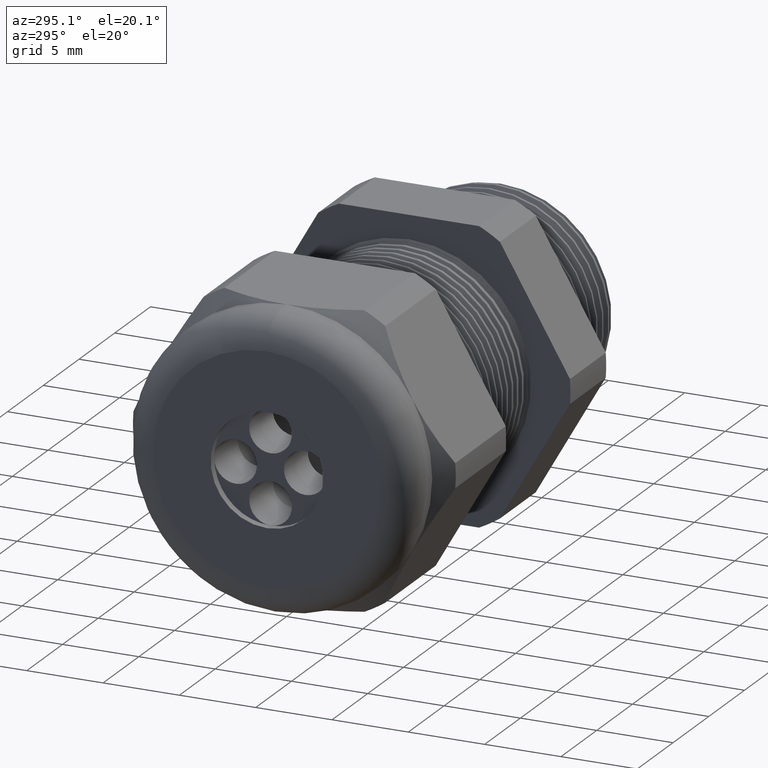
[diagram: clean part render]
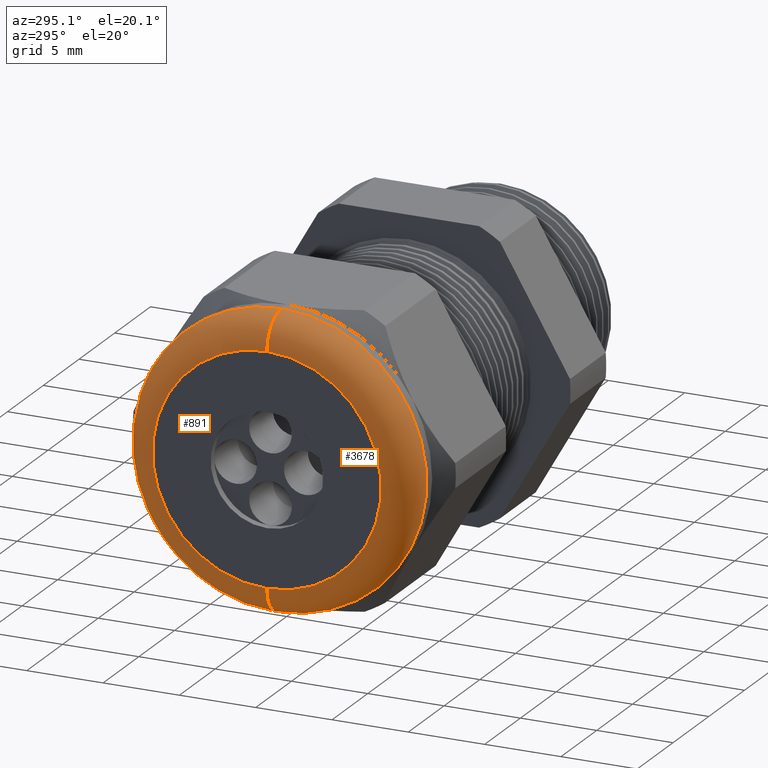
[diagram: same view with one multi-face feature highlighted, each face labeled with its STEP entity id]
A machine part, auxiliary view. The highlighted faces form ONE feature: a constant-radius fillet chain: 2 tangent blend faces with common blend radius 2.032 mm. The faces share edges in the B-rep.
Their STEP definitions:
[1] entity #3678 (Torus):
#110 = EDGE_CURVE ( 'NONE', #895, #894, #4941, .T. ) ;
#112 = EDGE_CURVE ( 'NONE', #815, #818, #4936, .T. ) ;
#815 = VERTEX_POINT ( 'NONE', #1447 ) ;
#818 = VERTEX_POINT ( 'NONE', #1441 ) ;
#820 = EDGE_CURVE ( 'NONE', #895, #818, #1439, .T. ) ;
#894 = VERTEX_POINT ( 'NONE', #1618 ) ;
#895 = VERTEX_POINT ( 'NONE', #1617 ) ;
#897 = EDGE_CURVE ( 'NONE', #894, #815, #1615, .T. ) ;
#1435 = DIRECTION ( 'NONE',  ( 0.0000000000000000000, 0.0000000000000000000, -1.000000000000000000 ) ) ;
#1436 = DIRECTION ( 'NONE',  ( 0.0000000000000000000, -1.000000000000000000, 0.0000000000000000000 ) ) ;
#1437 = CARTESIAN_POINT ( 'NONE',  ( -1.210000000000000000, 0.0000000000000000000, 0.2950000000000001000 ) ) ;
#1438 = AXIS2_PLACEMENT_3D ( 'NONE', #1437, #1436, #1435 ) ;
#1439 = CIRCLE ( 'NONE', #1438, 0.08000000000000000200 ) ;
#1441 = CARTESIAN_POINT ( 'NONE',  ( -1.289999999999999800, 0.0000000000000000000, 0.2950000000000001000 ) ) ;
#1447 = CARTESIAN_POINT ( 'NONE',  ( -1.289999999999999800, 4.102566777143634000E-017, -0.2950000000000001000 ) ) ;
#1611 = DIRECTION ( 'NONE',  ( 0.0000000000000000000, -1.224646799147353500E-016, 1.000000000000000000 ) ) ;
#1612 = DIRECTION ( 'NONE',  ( 0.0000000000000000000, 1.000000000000000000, 1.224646799147353200E-016 ) ) ;
#1613 = CARTESIAN_POINT ( 'NONE',  ( -1.210000000000000000, 3.612708057484693200E-017, -0.2950000000000001000 ) ) ;
#1614 = AXIS2_PLACEMENT_3D ( 'NONE', #1613, #1612, #1611 ) ;
#1615 = CIRCLE ( 'NONE', #1614, 0.08000000000000000200 ) ;
#1617 = CARTESIAN_POINT ( 'NONE',  ( -1.210000000000000000, 4.592425496802576100E-017, 0.3750000000000001100 ) ) ;
#1618 = CARTESIAN_POINT ( 'NONE',  ( -1.210000000000000000, 0.0000000000000000000, -0.3750000000000001100 ) ) ;
#2022 = DIRECTION ( 'NONE',  ( 0.0000000000000000000, 0.0000000000000000000, 1.000000000000000000 ) ) ;
#2023 = DIRECTION ( 'NONE',  ( -1.000000000000000000, 0.0000000000000000000, 0.0000000000000000000 ) ) ;
#2024 = AXIS2_PLACEMENT_3D ( 'NONE', #2030, #2023, #2022 ) ;
#2025 = TOROIDAL_SURFACE ( 'NONE', #2024, 0.2950000000000001000, 0.08000000000000000200 ) ;
#2026 = FACE_OUTER_BOUND ( 'NONE', #3679, .T. ) ;
#2030 = CARTESIAN_POINT ( 'NONE',  ( -1.210000000000000000, 0.0000000000000000000, 0.0000000000000000000 ) ) ;
#3659 = ORIENTED_EDGE ( 'NONE', *, *, #820, .T. ) ;
#3660 = ORIENTED_EDGE ( 'NONE', *, *, #112, .F. ) ;
#3678 = ADVANCED_FACE ( 'NONE', ( #2026 ), #2025, .T. ) ;
#3679 = EDGE_LOOP ( 'NONE', ( #3680, #3681, #3659, #3660 ) ) ;
#3680 = ORIENTED_EDGE ( 'NONE', *, *, #897, .F. ) ;
#3681 = ORIENTED_EDGE ( 'NONE', *, *, #110, .F. ) ;
#4932 = DIRECTION ( 'NONE',  ( 0.0000000000000000000, 0.0000000000000000000, 1.000000000000000000 ) ) ;
#4933 = DIRECTION ( 'NONE',  ( -1.000000000000000000, 0.0000000000000000000, 0.0000000000000000000 ) ) ;
#4934 = CARTESIAN_POINT ( 'NONE',  ( -1.289999999999999800, 0.0000000000000000000, 0.0000000000000000000 ) ) ;
#4935 = AXIS2_PLACEMENT_3D ( 'NONE', #4934, #4933, #4932 ) ;
#4936 = CIRCLE ( 'NONE', #4935, 0.2950000000000001000 ) ;
#4937 = DIRECTION ( 'NONE',  ( 0.0000000000000000000, 0.0000000000000000000, 1.000000000000000000 ) ) ;
#4938 = DIRECTION ( 'NONE',  ( 1.000000000000000000, 0.0000000000000000000, 0.0000000000000000000 ) ) ;
#4939 = CARTESIAN_POINT ( 'NONE',  ( -1.210000000000000000, 0.0000000000000000000, 0.0000000000000000000 ) ) ;
#4940 = AXIS2_PLACEMENT_3D ( 'NONE', #4939, #4938, #4937 ) ;
#4941 = CIRCLE ( 'NONE', #4940, 0.3750000000000001100 ) ;
[2] entity #891 (Torus):
#815 = VERTEX_POINT ( 'NONE', #1447 ) ;
#816 = ORIENTED_EDGE ( 'NONE', *, *, #817, .F. ) ;
#817 = EDGE_CURVE ( 'NONE', #818, #815, #1446, .T. ) ;
#818 = VERTEX_POINT ( 'NONE', #1441 ) ;
#819 = ORIENTED_EDGE ( 'NONE', *, *, #820, .F. ) ;
#820 = EDGE_CURVE ( 'NONE', #895, #818, #1439, .T. ) ;
#836 = EDGE_LOOP ( 'NONE', ( #892, #896, #816, #819 ) ) ;
#891 = ADVANCED_FACE ( 'NONE', ( #1566 ), #1565, .T. ) ;
#892 = ORIENTED_EDGE ( 'NONE', *, *, #893, .F. ) ;
#893 = EDGE_CURVE ( 'NONE', #894, #895, #1622, .T. ) ;
#894 = VERTEX_POINT ( 'NONE', #1618 ) ;
#895 = VERTEX_POINT ( 'NONE', #1617 ) ;
#896 = ORIENTED_EDGE ( 'NONE', *, *, #897, .T. ) ;
#897 = EDGE_CURVE ( 'NONE', #894, #815, #1615, .T. ) ;
#1435 = DIRECTION ( 'NONE',  ( 0.0000000000000000000, 0.0000000000000000000, -1.000000000000000000 ) ) ;
#1436 = DIRECTION ( 'NONE',  ( 0.0000000000000000000, -1.000000000000000000, 0.0000000000000000000 ) ) ;
#1437 = CARTESIAN_POINT ( 'NONE',  ( -1.210000000000000000, 0.0000000000000000000, 0.2950000000000001000 ) ) ;
#1438 = AXIS2_PLACEMENT_3D ( 'NONE', #1437, #1436, #1435 ) ;
#1439 = CIRCLE ( 'NONE', #1438, 0.08000000000000000200 ) ;
#1441 = CARTESIAN_POINT ( 'NONE',  ( -1.289999999999999800, 0.0000000000000000000, 0.2950000000000001000 ) ) ;
#1442 = DIRECTION ( 'NONE',  ( 0.0000000000000000000, 0.0000000000000000000, 1.000000000000000000 ) ) ;
#1443 = DIRECTION ( 'NONE',  ( -1.000000000000000000, 0.0000000000000000000, 0.0000000000000000000 ) ) ;
#1444 = CARTESIAN_POINT ( 'NONE',  ( -1.289999999999999800, 0.0000000000000000000, 0.0000000000000000000 ) ) ;
#1445 = AXIS2_PLACEMENT_3D ( 'NONE', #1444, #1443, #1442 ) ;
#1446 = CIRCLE ( 'NONE', #1445, 0.2950000000000001000 ) ;
#1447 = CARTESIAN_POINT ( 'NONE',  ( -1.289999999999999800, 4.102566777143634000E-017, -0.2950000000000001000 ) ) ;
#1564 = CARTESIAN_POINT ( 'NONE',  ( -1.210000000000000000, 0.0000000000000000000, 0.0000000000000000000 ) ) ;
#1565 = TOROIDAL_SURFACE ( 'NONE', #1625, 0.2950000000000001000, 0.08000000000000000200 ) ;
#1566 = FACE_OUTER_BOUND ( 'NONE', #836, .T. ) ;
#1611 = DIRECTION ( 'NONE',  ( 0.0000000000000000000, -1.224646799147353500E-016, 1.000000000000000000 ) ) ;
#1612 = DIRECTION ( 'NONE',  ( 0.0000000000000000000, 1.000000000000000000, 1.224646799147353200E-016 ) ) ;
#1613 = CARTESIAN_POINT ( 'NONE',  ( -1.210000000000000000, 3.612708057484693200E-017, -0.2950000000000001000 ) ) ;
#1614 = AXIS2_PLACEMENT_3D ( 'NONE', #1613, #1612, #1611 ) ;
#1615 = CIRCLE ( 'NONE', #1614, 0.08000000000000000200 ) ;
#1617 = CARTESIAN_POINT ( 'NONE',  ( -1.210000000000000000, 4.592425496802576100E-017, 0.3750000000000001100 ) ) ;
#1618 = CARTESIAN_POINT ( 'NONE',  ( -1.210000000000000000, 0.0000000000000000000, -0.3750000000000001100 ) ) ;
#1619 = DIRECTION ( 'NONE',  ( 0.0000000000000000000, 0.0000000000000000000, 1.000000000000000000 ) ) ;
#1620 = DIRECTION ( 'NONE',  ( 1.000000000000000000, 0.0000000000000000000, 0.0000000000000000000 ) ) ;
#1621 = AXIS2_PLACEMENT_3D ( 'NONE', #1626, #1620, #1619 ) ;
#1622 = CIRCLE ( 'NONE', #1621, 0.3750000000000001100 ) ;
#1623 = DIRECTION ( 'NONE',  ( 0.0000000000000000000, 0.0000000000000000000, 1.000000000000000000 ) ) ;
#1624 = DIRECTION ( 'NONE',  ( -1.000000000000000000, 0.0000000000000000000, 0.0000000000000000000 ) ) ;
#1625 = AXIS2_PLACEMENT_3D ( 'NONE', #1564, #1624, #1623 ) ;
#1626 = CARTESIAN_POINT ( 'NONE',  ( -1.210000000000000000, 0.0000000000000000000, 0.0000000000000000000 ) ) ;